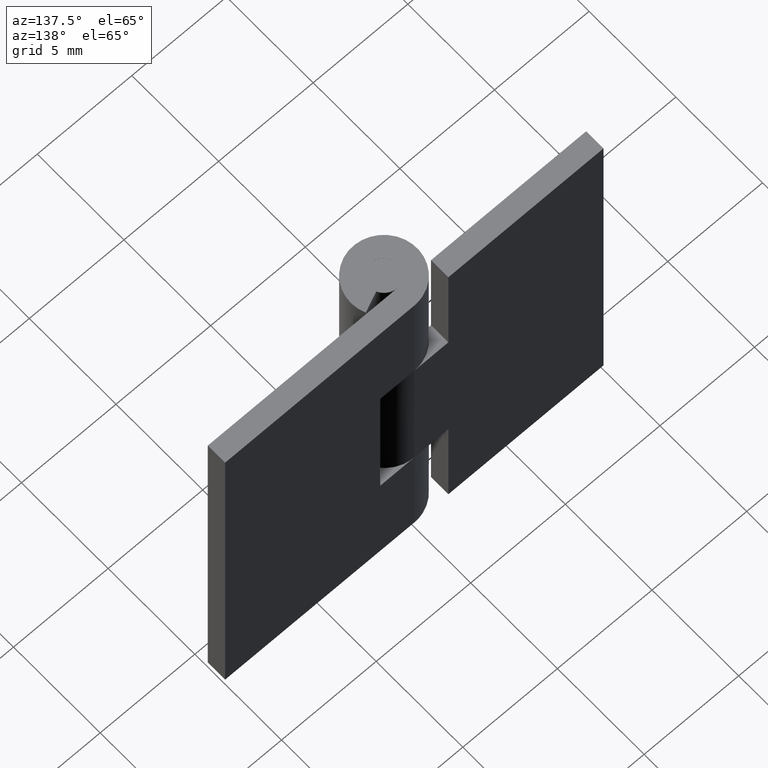
[diagram: clean part render]
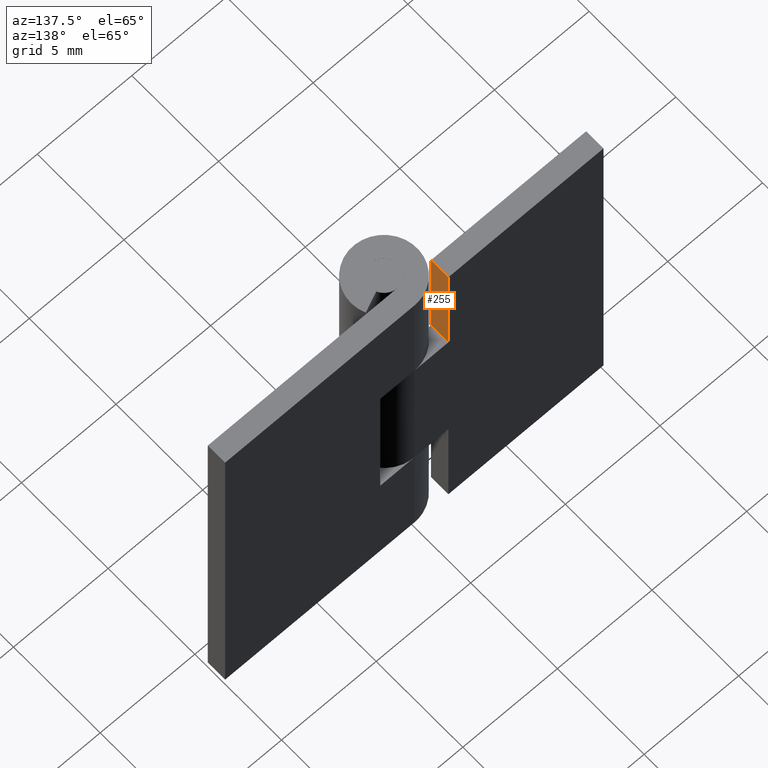
[diagram: same view with one face highlighted and labeled with its STEP entity id]
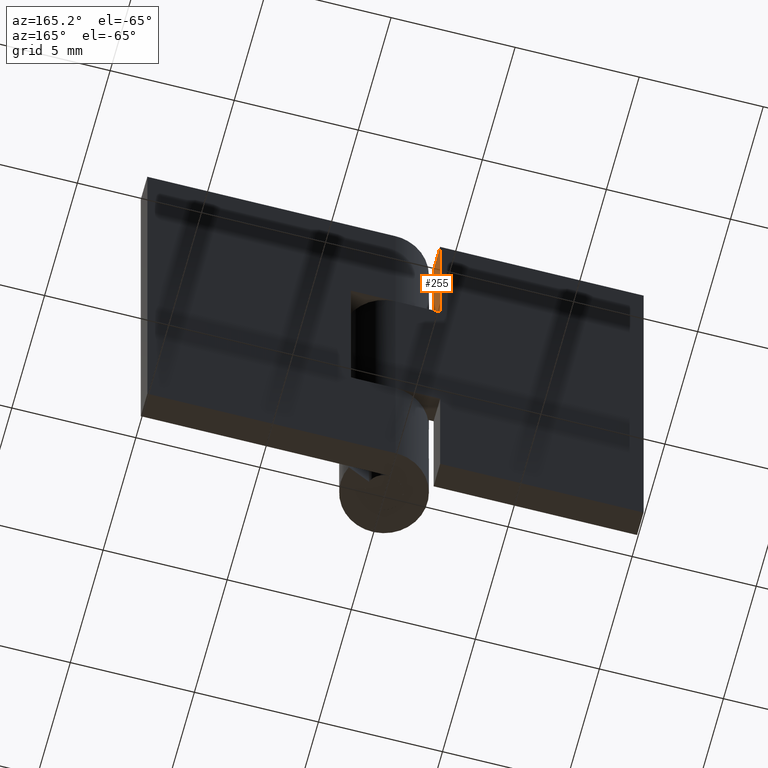
[diagram: same view with one face highlighted and labeled with its STEP entity id]
A machine part, auxiliary view. The second image highlights one B-rep face of the part: STEP entity #255.
A second angle (auxiliary view) of the same face is appended — the face is thin or edge-on in the first view.
In plain terms, the highlighted face is a freeform B-spline surface patch.
Its self-contained STEP definition (entity closure, byte-faithful):
#155=CARTESIAN_POINT('',(-1.800003000000000,1.750000000000030,14.0));
#156=VERTEX_POINT('',#155);
#164=CARTESIAN_POINT('',(-1.800003000000000,0.750000000000028,14.0));
#165=VERTEX_POINT('',#164);
#166=CARTESIAN_POINT('',(-1.800003000000000,0.750000000000028,14.0));
#167=CARTESIAN_POINT('',(-1.800003000000000,1.750000000000030,14.0));
#168=QUASI_UNIFORM_CURVE('',1,(#166,#167),.UNSPECIFIED.,.F.,.U.);
#169=EDGE_CURVE('',#165,#156,#168,.T.);
#228=CARTESIAN_POINT('',(-1.800003000000000,0.700050001938222,20.299699988370840));
#229=CARTESIAN_POINT('',(-1.800003000000000,0.700050001938222,13.700299850696620));
#230=CARTESIAN_POINT('',(-1.800003000000000,1.799950024883926,20.299699988370840));
#231=CARTESIAN_POINT('',(-1.800003000000000,1.799950024883926,13.700299850696620));
#232=B_SPLINE_SURFACE_WITH_KNOTS('',1,1,((#228,#230),(#229,#231)),.UNSPECIFIED.,.F.,.F.,.U.,(2,2),(2,2),(0.0,6.599400137674218),(0.041708334948495,0.958291687403247),.UNSPECIFIED.);
#233=ORIENTED_EDGE('',*,*,#169,.T.);
#234=CARTESIAN_POINT('',(-1.800003000000000,1.750000000000000,20.0));
#235=VERTEX_POINT('',#234);
#236=CARTESIAN_POINT('',(-1.800003000000000,1.750000000000000,20.0));
#237=CARTESIAN_POINT('',(-1.800003000000000,1.750000000000030,14.0));
#238=QUASI_UNIFORM_CURVE('',1,(#236,#237),.UNSPECIFIED.,.F.,.U.);
#239=EDGE_CURVE('',#235,#156,#238,.T.);
#240=ORIENTED_EDGE('',*,*,#239,.F.);
#241=CARTESIAN_POINT('',(-1.800003000000000,0.750000000000028,20.0));
#242=VERTEX_POINT('',#241);
#243=CARTESIAN_POINT('',(-1.800003000000000,0.750000000000028,20.0));
#244=CARTESIAN_POINT('',(-1.800003000000000,1.750000000000000,20.0));
#245=QUASI_UNIFORM_CURVE('',1,(#243,#244),.UNSPECIFIED.,.F.,.U.);
#246=EDGE_CURVE('',#242,#235,#245,.T.);
#247=ORIENTED_EDGE('',*,*,#246,.F.);
#248=CARTESIAN_POINT('',(-1.800003000000000,0.750000000000028,14.0));
#249=CARTESIAN_POINT('',(-1.800003000000000,0.750000000000028,20.0));
#250=QUASI_UNIFORM_CURVE('',1,(#248,#249),.UNSPECIFIED.,.F.,.U.);
#251=EDGE_CURVE('',#165,#242,#250,.T.);
#252=ORIENTED_EDGE('',*,*,#251,.F.);
#253=EDGE_LOOP('',(#233,#240,#247,#252));
#254=FACE_OUTER_BOUND('',#253,.T.);
#255=ADVANCED_FACE('',(#254),#232,.T.);